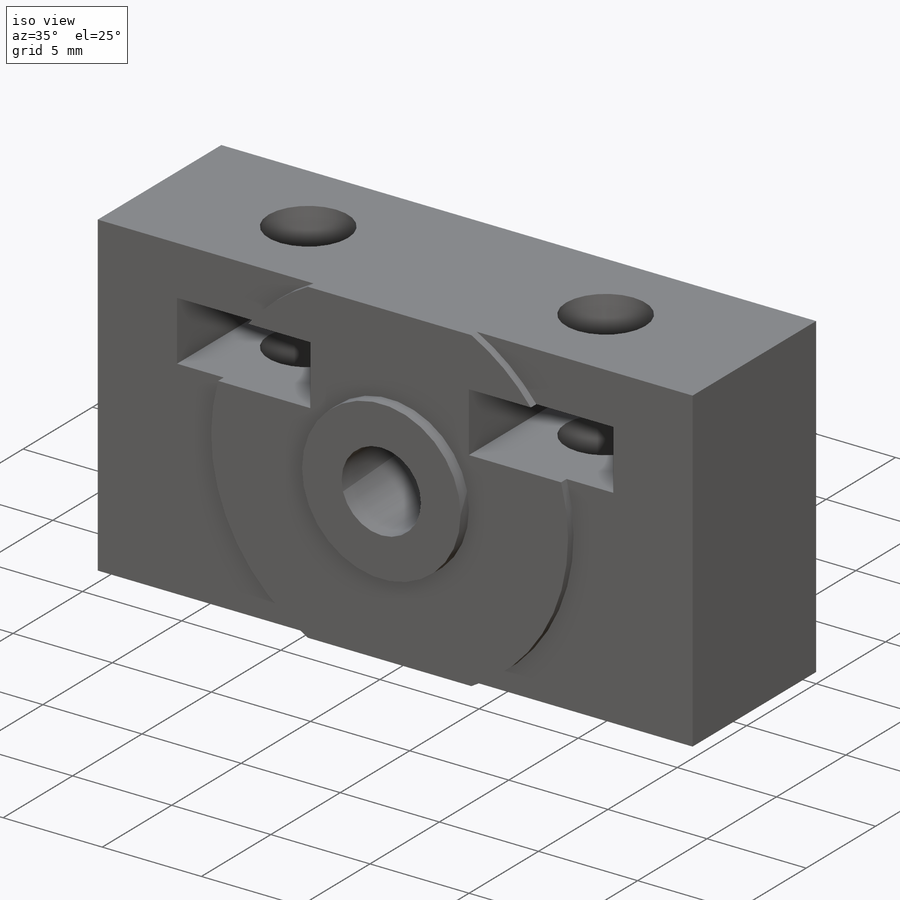
[diagram: iso view]
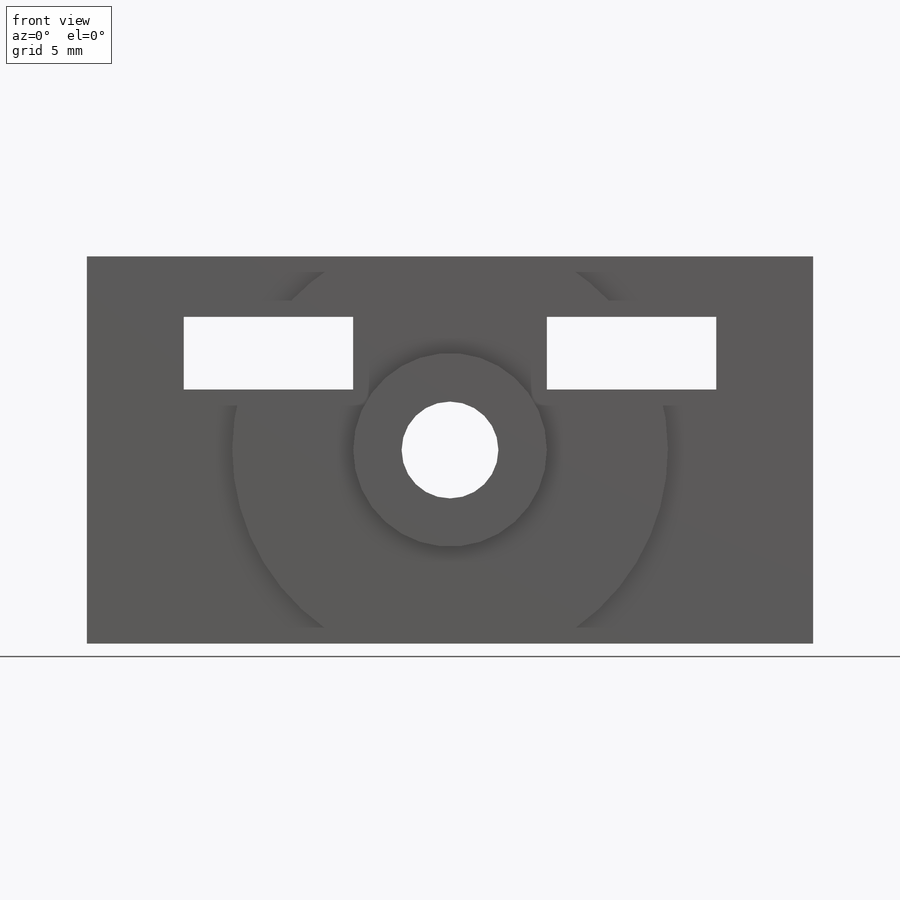
[diagram: front view]
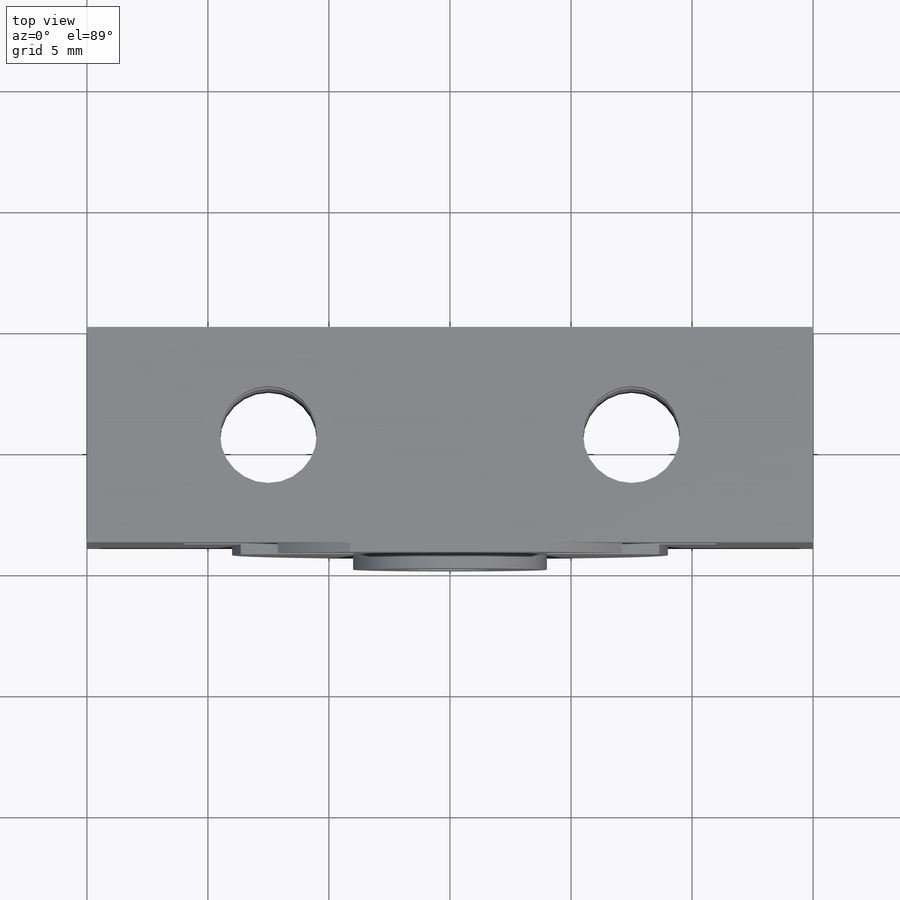
[diagram: top view]
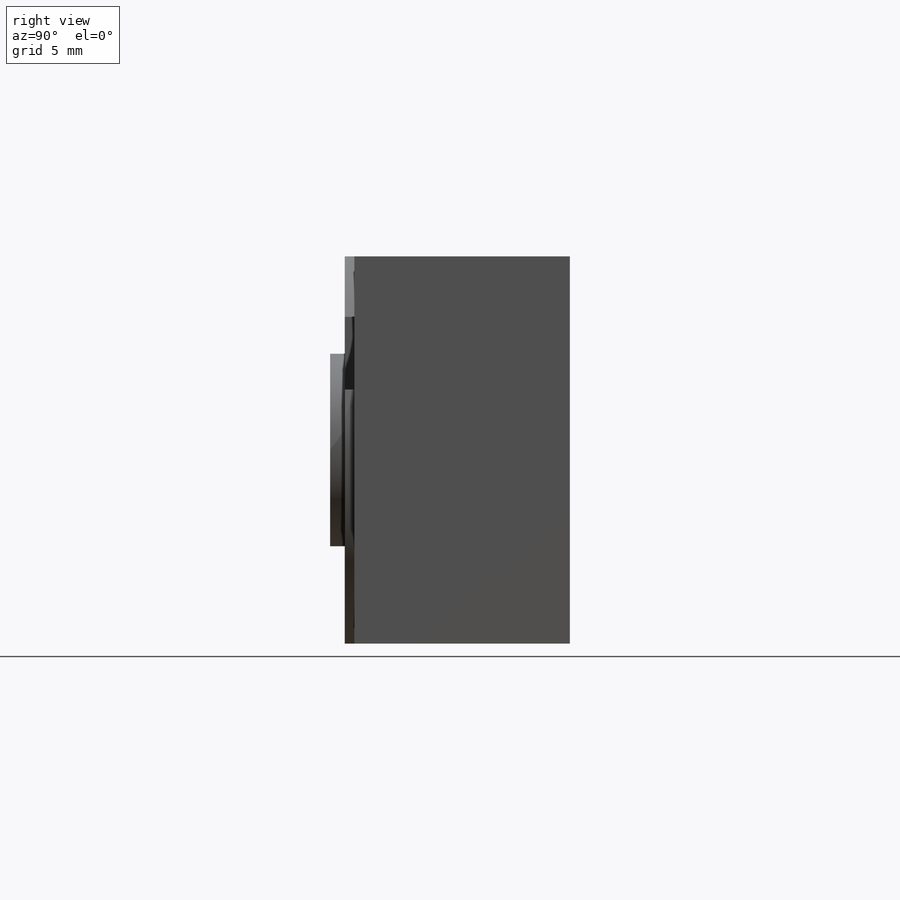
[diagram: right view]
SOLIDWORKS PART (.sldprt)
format: sldprt  version: not decoded by parser v0  size: 260,608 bytes
history: native  units: mm
features: sketch x5, plane x4, cut_extrude x3, material x1, extrude x1, revolve x1 (+10 scaffold rows collapsed)
feature tree (25):
  scaffold x10  (default folders/planes/origin — collapsed)
  material  "ABS"
  plane  "Спереди"
  plane  "Сверху"
  plane  "Справа"
  sketch  "Эскиз1"  dims[D3=4.0mm D1=30.0mm D2=16.0mm]
  extrude  "Бобышка-Вытянуть1"  Depth=8.9mm
  plane  "Плоскость1"
  sketch  "Эскиз5"  dims[c1.D1=1.0mm c1.D2=8.0mm c2.D2=90.0deg c3.D2=0.6mm c3.D3=2.0mm c3.D4=9.0mm]
  revolve  "Повернуть1"  Angle=360deg
  sketch  "Эскиз2"  dims[D1=4.5mm D2=4.0mm]
  cut_extrude  "Вырез-Вытянуть1"  [1 undecoded]
  sketch  "Эскиз3"  dims[D1=8.0mm D2=4.0mm]
  cut_extrude  "Вырез-Вытянуть2"  [1 undecoded]
  sketch  "Эскиз7"
  cut_extrude  "Вырез-Вытянуть4"  [1 undecoded]
decode coverage: 6 of 10 modeling features carry decoded parameters
note: 3 parameter values undecoded
summary: no parameter record found for 3 features
note: suppression state not decoded; provenance and decode notes live in map.json
